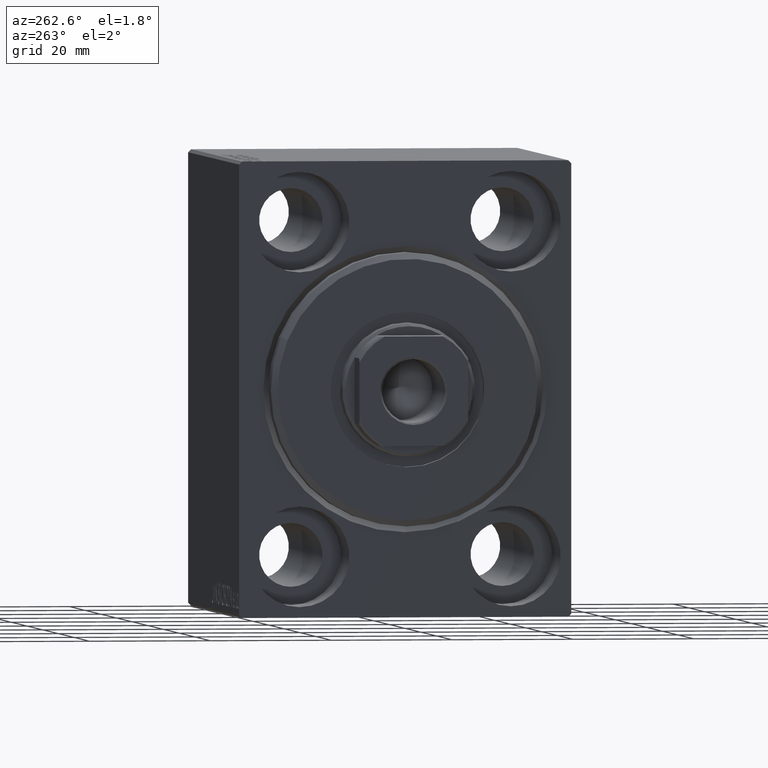
[diagram: clean part render]
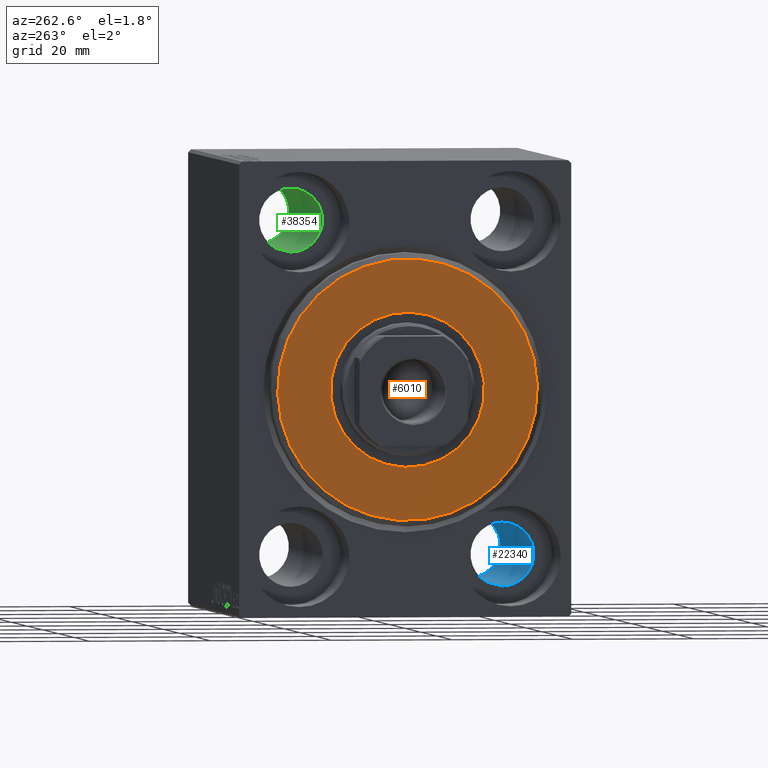
[diagram: same view with three faces highlighted in distinct colors, each labeled with its STEP entity id]
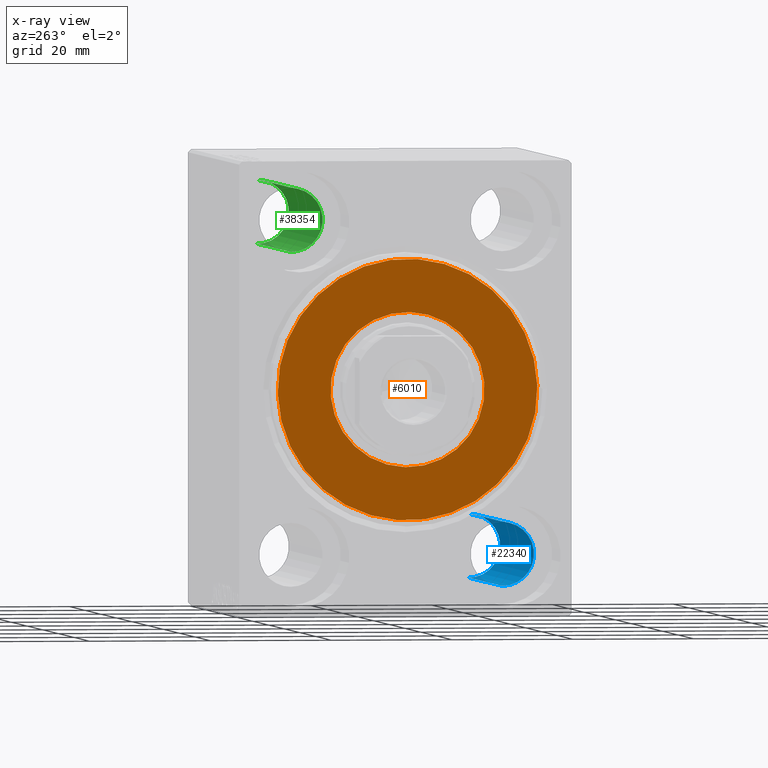
[diagram: x-ray of the same camera — body ghosted, the three highlighted faces saturated]
A machine part, auxiliary view with three faces highlighted in distinct colors.
The next image is the same camera in x-ray (body ghosted, the three faces saturated) — at least one of them is partly hidden behind the body in this view.
Their STEP definitions:

[orange] entity #6010 — the highlighted planar face has unit normal (-1, 0, 0).
#293 = ORIENTED_EDGE ( 'NONE', *, *, #13107, .T. ) ;
#3487 = CIRCLE ( 'NONE', #3587, 21.50000000000000355 ) ;
#3587 = AXIS2_PLACEMENT_3D ( 'NONE', #15972, #22811, #19500 ) ;
#3703 = PLANE ( 'NONE',  #9563 ) ;
#4546 = CARTESIAN_POINT ( 'NONE',  ( 3.000000000000000000, 0.000000000000000000, 0.000000000000000000 ) ) ;
#6010 = ADVANCED_FACE ( 'NONE', ( #30574, #20242 ), #3703, .T. ) ;
#6683 = CARTESIAN_POINT ( 'NONE',  ( 3.000000000000000000, 0.000000000000000000, 21.50000000000000355 ) ) ;
#7564 = AXIS2_PLACEMENT_3D ( 'NONE', #39663, #29970, #43411 ) ;
#7705 = EDGE_LOOP ( 'NONE', ( #34813, #24134 ) ) ;
#7942 = DIRECTION ( 'NONE',  ( -1.000000000000000000, 0.000000000000000000, -0.000000000000000000 ) ) ;
#8059 = DIRECTION ( 'NONE',  ( 0.000000000000000000, 0.000000000000000000, -1.000000000000000000 ) ) ;
#8592 = CARTESIAN_POINT ( 'NONE',  ( 3.000000000000000000, 0.000000000000000000, 0.000000000000000000 ) ) ;
#8874 = AXIS2_PLACEMENT_3D ( 'NONE', #4546, #31203, #8059 ) ;
#9310 = VERTEX_POINT ( 'NONE', #6683 ) ;
#9563 = AXIS2_PLACEMENT_3D ( 'NONE', #33663, #16933, #30360 ) ;
#10290 = EDGE_CURVE ( 'NONE', #43371, #10703, #13811, .T. ) ;
#10703 = VERTEX_POINT ( 'NONE', #35475 ) ;
#12836 = VERTEX_POINT ( 'NONE', #25870 ) ;
#13107 = EDGE_CURVE ( 'NONE', #12836, #9310, #23048, .T. ) ;
#13811 = CIRCLE ( 'NONE', #8874, 12.75000000000000000 ) ;
#14992 = DIRECTION ( 'NONE',  ( 0.000000000000000000, 0.000000000000000000, -1.000000000000000000 ) ) ;
#15883 = CIRCLE ( 'NONE', #18004, 12.75000000000000000 ) ;
#15972 = CARTESIAN_POINT ( 'NONE',  ( 3.000000000000000000, 0.000000000000000000, 0.000000000000000000 ) ) ;
#16933 = DIRECTION ( 'NONE',  ( 1.000000000000000000, -0.000000000000000000, 0.000000000000000000 ) ) ;
#18004 = AXIS2_PLACEMENT_3D ( 'NONE', #8592, #7942, #14992 ) ;
#18880 = CARTESIAN_POINT ( 'NONE',  ( 3.000000000000000000, 1.561424668912874914E-15, -12.75000000000000000 ) ) ;
#19500 = DIRECTION ( 'NONE',  ( 0.000000000000000000, 0.000000000000000000, -1.000000000000000000 ) ) ;
#19909 = EDGE_CURVE ( 'NONE', #9310, #12836, #3487, .T. ) ;
#20242 = FACE_BOUND ( 'NONE', #7705, .T. ) ;
#22811 = DIRECTION ( 'NONE',  ( 1.000000000000000000, -0.000000000000000000, 0.000000000000000000 ) ) ;
#23048 = CIRCLE ( 'NONE', #7564, 21.50000000000000355 ) ;
#24134 = ORIENTED_EDGE ( 'NONE', *, *, #10290, .T. ) ;
#25665 = EDGE_CURVE ( 'NONE', #10703, #43371, #15883, .T. ) ;
#25870 = CARTESIAN_POINT ( 'NONE',  ( 3.000000000000000000, 2.694222958124177598E-15, -21.50000000000000355 ) ) ;
#29970 = DIRECTION ( 'NONE',  ( 1.000000000000000000, -0.000000000000000000, 0.000000000000000000 ) ) ;
#30360 = DIRECTION ( 'NONE',  ( 0.000000000000000000, 0.000000000000000000, -1.000000000000000000 ) ) ;
#30574 = FACE_OUTER_BOUND ( 'NONE', #38095, .T. ) ;
#31203 = DIRECTION ( 'NONE',  ( -1.000000000000000000, 0.000000000000000000, -0.000000000000000000 ) ) ;
#33663 = CARTESIAN_POINT ( 'NONE',  ( 3.000000000000000000, 0.000000000000000000, 0.000000000000000000 ) ) ;
#34813 = ORIENTED_EDGE ( 'NONE', *, *, #25665, .T. ) ;
#35475 = CARTESIAN_POINT ( 'NONE',  ( 3.000000000000000000, 0.000000000000000000, 12.75000000000000000 ) ) ;
#38095 = EDGE_LOOP ( 'NONE', ( #41633, #293 ) ) ;
#39663 = CARTESIAN_POINT ( 'NONE',  ( 3.000000000000000000, 0.000000000000000000, 0.000000000000000000 ) ) ;
#41633 = ORIENTED_EDGE ( 'NONE', *, *, #19909, .T. ) ;
#43371 = VERTEX_POINT ( 'NONE', #18880 ) ;
#43411 = DIRECTION ( 'NONE',  ( 0.000000000000000000, 0.000000000000000000, -1.000000000000000000 ) ) ;

[blue] entity #22340 — the highlighted cylindrical surface (edge-blend (fillet) strip) has radius 5.25 mm, axis along (-1, -0, -0).
#2426 = DIRECTION ( 'NONE',  ( -1.000000000000000000, -0.000000000000000000, -0.000000000000000000 ) ) ;
#2959 = DIRECTION ( 'NONE',  ( 0.000000000000000000, 0.000000000000000000, -1.000000000000000000 ) ) ;
#4662 = ORIENTED_EDGE ( 'NONE', *, *, #33820, .F. ) ;
#4825 = VECTOR ( 'NONE', #7905, 1000.000000000000000 ) ;
#5108 = DIRECTION ( 'NONE',  ( -1.000000000000000000, 0.000000000000000000, 0.000000000000000000 ) ) ;
#5544 = CARTESIAN_POINT ( 'NONE',  ( 10.99999999999999645, -17.50000000000000355, -27.50000000000000355 ) ) ;
#6105 = AXIS2_PLACEMENT_3D ( 'NONE', #5544, #5108, #15249 ) ;
#7471 = CARTESIAN_POINT ( 'NONE',  ( 54.00000000000000711, -17.50000000000000355, -22.25000000000000355 ) ) ;
#7905 = DIRECTION ( 'NONE',  ( -1.000000000000000000, -0.000000000000000000, -0.000000000000000000 ) ) ;
#8538 = CARTESIAN_POINT ( 'NONE',  ( 54.00000000000000711, -17.50000000000000355, -27.50000000000000355 ) ) ;
#12267 = AXIS2_PLACEMENT_3D ( 'NONE', #32833, #2426, #42753 ) ;
#12577 = FACE_OUTER_BOUND ( 'NONE', #42352, .T. ) ;
#14076 = CARTESIAN_POINT ( 'NONE',  ( 10.99999999999999645, -17.50000000000000355, -22.25000000000000355 ) ) ;
#14703 = DIRECTION ( 'NONE',  ( -1.000000000000000000, -0.000000000000000000, -0.000000000000000000 ) ) ;
#15249 = DIRECTION ( 'NONE',  ( 0.000000000000000000, 0.000000000000000000, 1.000000000000000000 ) ) ;
#15564 = LINE ( 'NONE', #22407, #31558 ) ;
#17507 = AXIS2_PLACEMENT_3D ( 'NONE', #8538, #35197, #2959 ) ;
#18267 = VERTEX_POINT ( 'NONE', #21194 ) ;
#21194 = CARTESIAN_POINT ( 'NONE',  ( 54.00000000000000711, -17.50000000000000355, -32.75000000000000000 ) ) ;
#22340 = ADVANCED_FACE ( 'NONE', ( #12577 ), #28891, .F. ) ;
#22407 = CARTESIAN_POINT ( 'NONE',  ( 65.00000000000000000, -17.50000000000000355, -22.25000000000000355 ) ) ;
#24500 = VERTEX_POINT ( 'NONE', #41725 ) ;
#25773 = ORIENTED_EDGE ( 'NONE', *, *, #39291, .F. ) ;
#25909 = VERTEX_POINT ( 'NONE', #14076 ) ;
#28220 = EDGE_CURVE ( 'NONE', #24500, #25909, #39799, .T. ) ;
#28615 = LINE ( 'NONE', #42038, #4825 ) ;
#28891 = CYLINDRICAL_SURFACE ( 'NONE', #12267, 5.250000000000000888 ) ;
#31558 = VECTOR ( 'NONE', #14703, 1000.000000000000000 ) ;
#32833 = CARTESIAN_POINT ( 'NONE',  ( 65.00000000000000000, -17.50000000000000355, -27.50000000000000355 ) ) ;
#32835 = ORIENTED_EDGE ( 'NONE', *, *, #38196, .T. ) ;
#33820 = EDGE_CURVE ( 'NONE', #38150, #25909, #15564, .T. ) ;
#35197 = DIRECTION ( 'NONE',  ( -1.000000000000000000, -0.000000000000000000, -0.000000000000000000 ) ) ;
#36602 = ORIENTED_EDGE ( 'NONE', *, *, #28220, .T. ) ;
#38150 = VERTEX_POINT ( 'NONE', #7471 ) ;
#38196 = EDGE_CURVE ( 'NONE', #18267, #24500, #28615, .T. ) ;
#38620 = CIRCLE ( 'NONE', #17507, 5.249999999999997335 ) ;
#39291 = EDGE_CURVE ( 'NONE', #18267, #38150, #38620, .T. ) ;
#39799 = CIRCLE ( 'NONE', #6105, 5.250000000000000888 ) ;
#41725 = CARTESIAN_POINT ( 'NONE',  ( 10.99999999999999645, -17.50000000000000355, -32.75000000000000000 ) ) ;
#42038 = CARTESIAN_POINT ( 'NONE',  ( 65.00000000000000000, -17.50000000000000355, -32.75000000000000000 ) ) ;
#42352 = EDGE_LOOP ( 'NONE', ( #25773, #32835, #36602, #4662 ) ) ;
#42753 = DIRECTION ( 'NONE',  ( 0.000000000000000000, 0.000000000000000000, 1.000000000000000000 ) ) ;

[green] entity #38354 — the highlighted cylindrical surface (edge-blend (fillet) strip) has radius 5.25 mm, axis along (-1, -0, -0).
#772 = DIRECTION ( 'NONE',  ( 0.000000000000000000, 0.000000000000000000, 1.000000000000000000 ) ) ;
#1259 = AXIS2_PLACEMENT_3D ( 'NONE', #28484, #28920, #35511 ) ;
#5521 = LINE ( 'NONE', #21256, #12548 ) ;
#6925 = AXIS2_PLACEMENT_3D ( 'NONE', #10252, #10913, #772 ) ;
#7495 = VERTEX_POINT ( 'NONE', #9594 ) ;
#7949 = VERTEX_POINT ( 'NONE', #21169 ) ;
#9594 = CARTESIAN_POINT ( 'NONE',  ( 54.00000000000000711, 17.50000000000000355, 22.25000000000000000 ) ) ;
#10252 = CARTESIAN_POINT ( 'NONE',  ( 65.00000000000000000, 17.50000000000000355, 27.49999999999999645 ) ) ;
#10670 = DIRECTION ( 'NONE',  ( -1.000000000000000000, -0.000000000000000000, -0.000000000000000000 ) ) ;
#10913 = DIRECTION ( 'NONE',  ( -1.000000000000000000, -0.000000000000000000, -0.000000000000000000 ) ) ;
#11160 = EDGE_CURVE ( 'NONE', #7949, #33528, #29038, .T. ) ;
#11541 = DIRECTION ( 'NONE',  ( -1.000000000000000000, -0.000000000000000000, -0.000000000000000000 ) ) ;
#11962 = ORIENTED_EDGE ( 'NONE', *, *, #32183, .T. ) ;
#12290 = DIRECTION ( 'NONE',  ( -1.000000000000000000, -0.000000000000000000, -0.000000000000000000 ) ) ;
#12513 = CARTESIAN_POINT ( 'NONE',  ( 65.00000000000000000, 17.50000000000000355, 32.74999999999999289 ) ) ;
#12548 = VECTOR ( 'NONE', #10670, 1000.000000000000000 ) ;
#13944 = CIRCLE ( 'NONE', #1259, 5.249999999999997335 ) ;
#17150 = AXIS2_PLACEMENT_3D ( 'NONE', #28294, #11541, #38628 ) ;
#20856 = EDGE_CURVE ( 'NONE', #7495, #7949, #38244, .T. ) ;
#21169 = CARTESIAN_POINT ( 'NONE',  ( 54.00000000000000711, 17.50000000000000355, 32.74999999999999289 ) ) ;
#21256 = CARTESIAN_POINT ( 'NONE',  ( 65.00000000000000000, 17.50000000000000355, 22.25000000000000000 ) ) ;
#21898 = ORIENTED_EDGE ( 'NONE', *, *, #37955, .T. ) ;
#22486 = ORIENTED_EDGE ( 'NONE', *, *, #11160, .F. ) ;
#22707 = ORIENTED_EDGE ( 'NONE', *, *, #20856, .F. ) ;
#27878 = VECTOR ( 'NONE', #12290, 1000.000000000000000 ) ;
#28248 = CARTESIAN_POINT ( 'NONE',  ( 10.99999999999999645, 17.50000000000000355, 32.74999999999999289 ) ) ;
#28294 = CARTESIAN_POINT ( 'NONE',  ( 54.00000000000000711, 17.50000000000000355, 27.49999999999999645 ) ) ;
#28484 = CARTESIAN_POINT ( 'NONE',  ( 10.99999999999999645, 17.50000000000000355, 27.49999999999999645 ) ) ;
#28920 = DIRECTION ( 'NONE',  ( -1.000000000000000000, 0.000000000000000000, 0.000000000000000000 ) ) ;
#29038 = LINE ( 'NONE', #12513, #27878 ) ;
#32183 = EDGE_CURVE ( 'NONE', #38633, #33528, #13944, .T. ) ;
#33528 = VERTEX_POINT ( 'NONE', #28248 ) ;
#35000 = EDGE_LOOP ( 'NONE', ( #22707, #21898, #11962, #22486 ) ) ;
#35511 = DIRECTION ( 'NONE',  ( 0.000000000000000000, 0.000000000000000000, 1.000000000000000000 ) ) ;
#37955 = EDGE_CURVE ( 'NONE', #7495, #38633, #5521, .T. ) ;
#38244 = CIRCLE ( 'NONE', #17150, 5.249999999999997335 ) ;
#38354 = ADVANCED_FACE ( 'NONE', ( #40656 ), #40425, .F. ) ;
#38606 = CARTESIAN_POINT ( 'NONE',  ( 10.99999999999999645, 17.50000000000000355, 22.25000000000000000 ) ) ;
#38628 = DIRECTION ( 'NONE',  ( 0.000000000000000000, 0.000000000000000000, -1.000000000000000000 ) ) ;
#38633 = VERTEX_POINT ( 'NONE', #38606 ) ;
#40425 = CYLINDRICAL_SURFACE ( 'NONE', #6925, 5.249999999999997335 ) ;
#40656 = FACE_OUTER_BOUND ( 'NONE', #35000, .T. ) ;